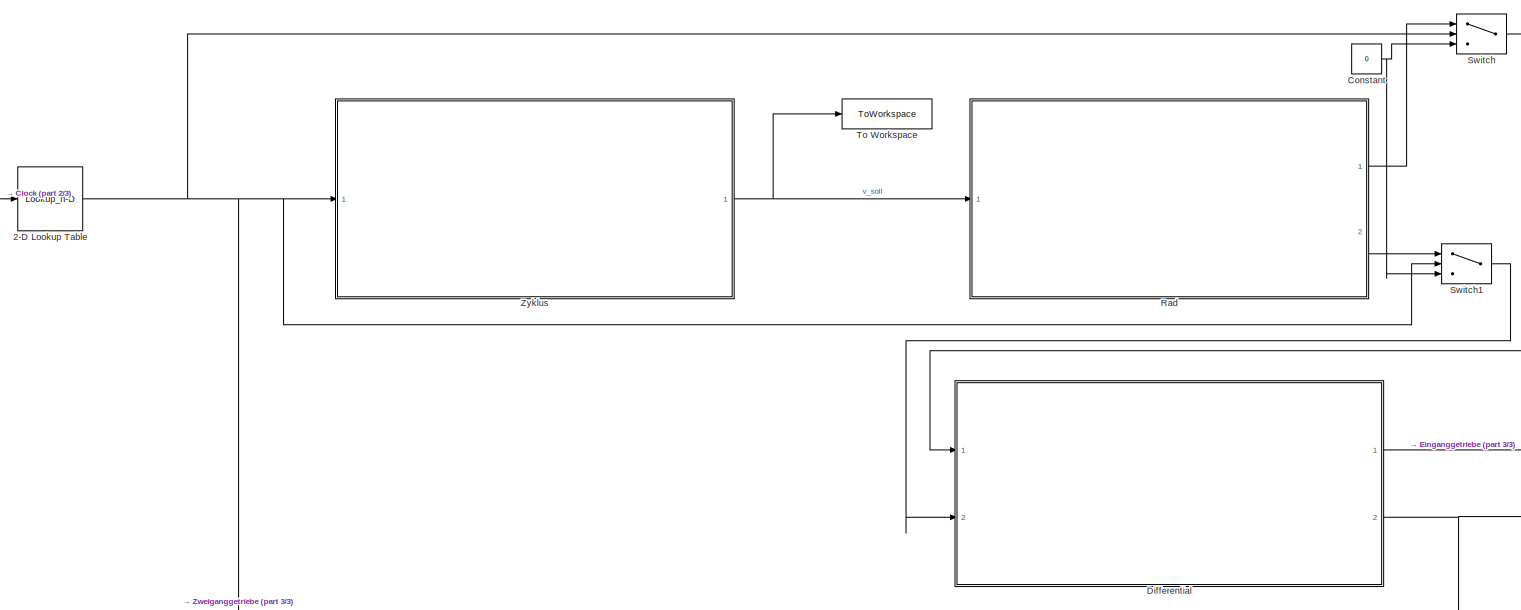
[diagram: root canvas - part 1/3, top left region]
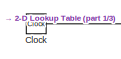
[diagram: root canvas - part 2/3, top left region]
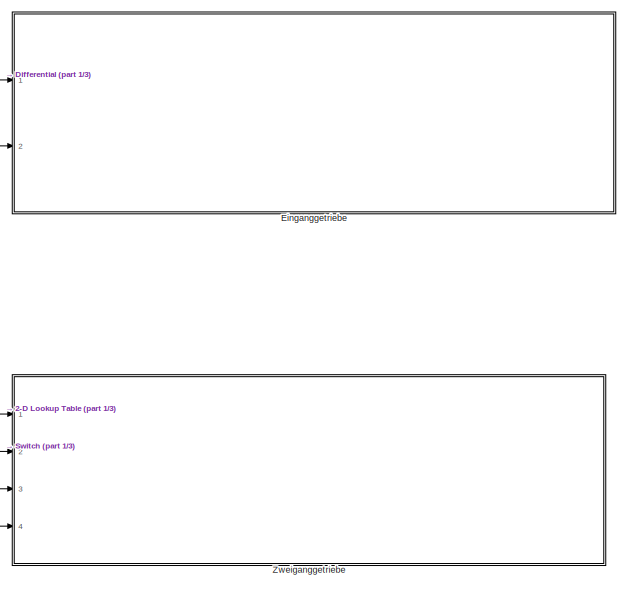
[diagram: root canvas - part 3/3, bottom right region]
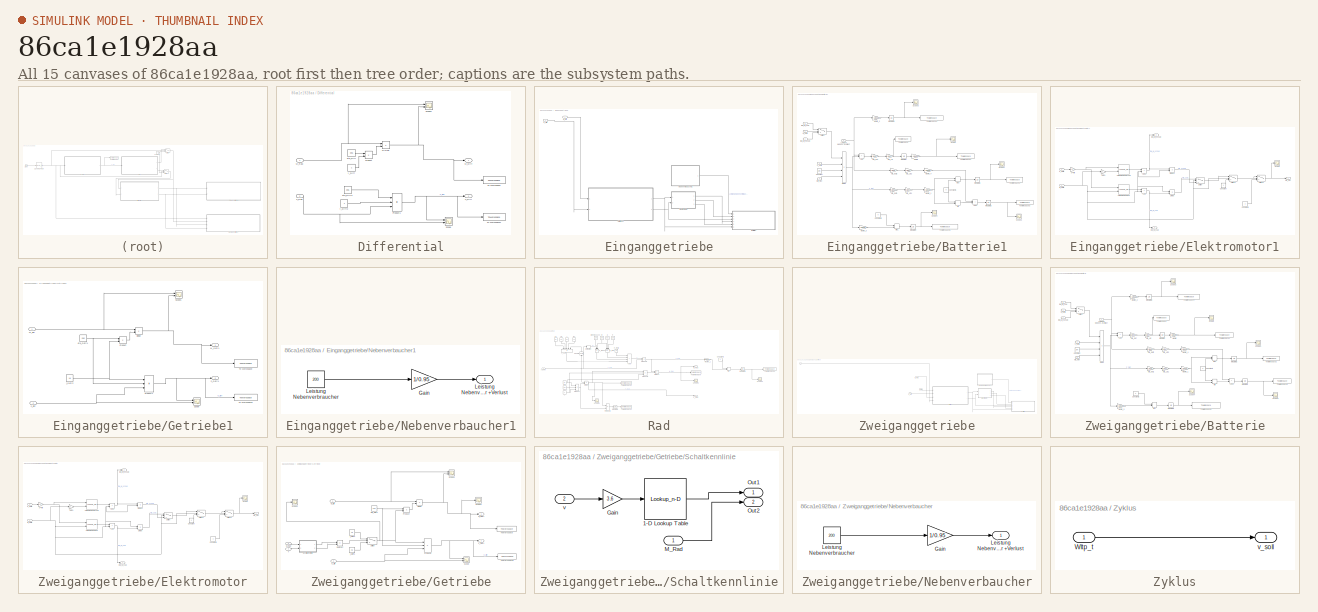
[diagram: thumbnail index - all 15 canvases of the model, root first then tree order]
MODEL slx_86ca1e1928aa
KIND model
CONFIG AbsTol = auto
CONFIG EnableMultiTasking = off
CONFIG FixedStep = 1
CONFIG MaxStep = auto
CONFIG MinStep = auto
CONFIG RelTol = 1e-3
CONFIG SampleTimeConstraint = Unconstrained
CONFIG SolverName = FixedStepAuto
CONFIG StartTime = 0.0
CONFIG StopTime = 1800
BLOCK [Lookup_n-D] 2-D Lookup Table
  BreakpointsForDimension1 = Wltp_t
  BreakpointsForDimension2 = [1:3]
  InputPortMap = u0
  InternalRulePriority = Speed
  NumberOfTableDimensions = 1
  Ports = [1, 1]
  RndMeth = Simplest
  Table = Wltp_v
BLOCK [Clock] Clock
  Decimation = 1
BLOCK [Constant] Constant
  Value = 0
BLOCK [SubSystem] Differential
  Ports = [2, 2]
  RequestExecContextInheritance = off
BLOCK [Product] Differential/Divide
  Inputs = */
  Ports = [2, 1]
BLOCK [Outport] Differential/M_Diff
BLOCK [Inport] Differential/M_Rad
BLOCK [Product] Differential/Product
  Ports = [2, 1]
BLOCK [Product] Differential/Product1
  Inputs = 3
  Ports = [3, 1]
BLOCK [Scope] Differential/Scope
  Floating = off
  NumInputPorts = 2
  Ports = [2]
  ScopeSpecificationString = Simulink.scopes.TimeScopeBlockCfg('CurrentConfiguration', extmgr.ConfigurationSet(extmgr.Configuration('Core','General UI',true),extmgr.Configuration('Core','Source UI',true),extmgr.Configuration('Sources','WiredSimulink',true,'DataLoggingVariableName','ScopeData1'),extmgr.Configuration('Visuals','Time Domain',true,'SerializedDisplays',{struct('MinYLimReal','-8.10956','MaxYLimReal','72.986','YLabe...<+1394ch>
BLOCK [Scope] Differential/Scope1
  Floating = off
  NumInputPorts = 2
  Ports = [2]
  ScopeSpecificationString = Simulink.scopes.TimeScopeBlockCfg('CurrentConfiguration', extmgr.ConfigurationSet(extmgr.Configuration('Core','General UI',true),extmgr.Configuration('Core','Source UI',true),extmgr.Configuration('Sources','WiredSimulink',true,'DataLoggingVariableName','ScopeData2'),extmgr.Configuration('Visuals','Time Domain',true,'SerializedDisplays',{struct('MinYLimReal','-868.40016','MaxYLimReal','1089.79286',...<+1433ch>
BLOCK [ToWorkspace] Differential/To Workspace
  FixptAsFi = on
  MaxDataPoints = inf
  Ports = [1]
  SampleTime = -1
  SaveFormat = Timeseries
  VariableName = M_Diff
BLOCK [ToWorkspace] Differential/To Workspace1
  FixptAsFi = on
  MaxDataPoints = inf
  Ports = [1]
  SampleTime = -1
  SaveFormat = Timeseries
  VariableName = n_Diff
BLOCK [Constant] Differential/eta_Diff
  Value = 0.95
BLOCK [Constant] Differential/eta_Diff2
  Value = 0.95
BLOCK [Constant] Differential/i_Diff
  Value = 4
BLOCK [Constant] Differential/i_Diff2
  Value = 4
BLOCK [Outport] Differential/n_Diff
  Port = 2
BLOCK [Inport] Differential/n_Rad
  Port = 2
BLOCK [SubSystem] Einganggetriebe
  Ports = [2]
  RequestExecContextInheritance = off
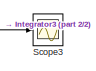
[diagram: Einganggetriebe/Batterie1 - part 1/2, top center region]
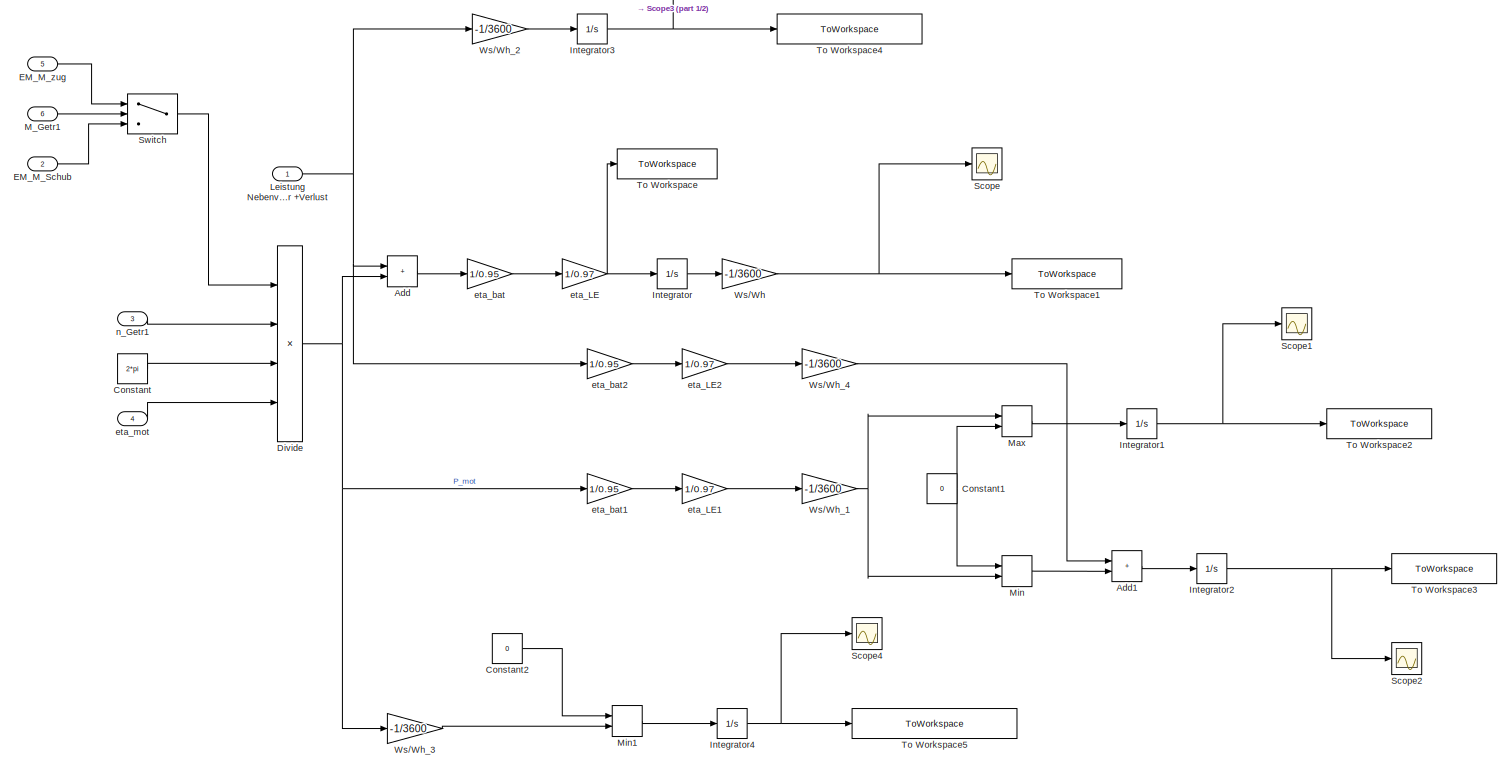
[diagram: Einganggetriebe/Batterie1 - part 2/2, most of the canvas]
BLOCK [SubSystem] Einganggetriebe/Batterie1
  Ports = [6]
  RequestExecContextInheritance = off
BLOCK [Sum] Einganggetriebe/Batterie1/Add
  IconShape = rectangular
  Ports = [2, 1]
BLOCK [Sum] Einganggetriebe/Batterie1/Add1
  IconShape = rectangular
  Ports = [2, 1]
BLOCK [Constant] Einganggetriebe/Batterie1/Constant
  Value = 2*pi
BLOCK [Constant] Einganggetriebe/Batterie1/Constant1
  Value = 0
BLOCK [Constant] Einganggetriebe/Batterie1/Constant2
  Value = 0
BLOCK [Product] Einganggetriebe/Batterie1/Divide
  Inputs = ***/
  Ports = [4, 1]
BLOCK [Inport] Einganggetriebe/Batterie1/EM_M_Schub
  Port = 2
BLOCK [Inport] Einganggetriebe/Batterie1/EM_M_zug
  Port = 5
BLOCK [Integrator] Einganggetriebe/Batterie1/Integrator
  Ports = [1, 1]
BLOCK [Integrator] Einganggetriebe/Batterie1/Integrator1
  Ports = [1, 1]
BLOCK [Integrator] Einganggetriebe/Batterie1/Integrator2
  Ports = [1, 1]
BLOCK [Integrator] Einganggetriebe/Batterie1/Integrator3
  Ports = [1, 1]
BLOCK [Integrator] Einganggetriebe/Batterie1/Integrator4
  Ports = [1, 1]
BLOCK [Inport] Einganggetriebe/Batterie1/Leistung Nebenverbaucher +Verlust
BLOCK [Inport] Einganggetriebe/Batterie1/M_Getr1
  Port = 6
BLOCK [MinMax] Einganggetriebe/Batterie1/Max
  Function = max
  Inputs = 2
  Ports = [2, 1]
BLOCK [MinMax] Einganggetriebe/Batterie1/Min
  Inputs = 2
  Ports = [2, 1]
BLOCK [MinMax] Einganggetriebe/Batterie1/Min1
  Inputs = 2
  Ports = [2, 1]
BLOCK [Scope] Einganggetriebe/Batterie1/Scope
  Floating = off
  NumInputPorts = 1
  Ports = [1]
  ScopeSpecificationString = Simulink.scopes.TimeScopeBlockCfg('CurrentConfiguration', extmgr.ConfigurationSet(extmgr.Configuration('Core','General UI',true),extmgr.Configuration('Core','Source UI',true),extmgr.Configuration('Sources','WiredSimulink',true,'DataLoggingVariableName','ScopeData1'),extmgr.Configuration('Visuals','Time Domain',true,'SerializedDisplays',{struct('MinYLimReal','-2300.46075','MaxYLimReal','255.60675',...<+1437ch>
BLOCK [Scope] Einganggetriebe/Batterie1/Scope1
  Floating = off
  NumInputPorts = 1
  Ports = [1]
  ScopeSpecificationString = Simulink.scopes.TimeScopeBlockCfg('CurrentConfiguration', extmgr.ConfigurationSet(extmgr.Configuration('Core','General UI',true),extmgr.Configuration('Core','Source UI',true),extmgr.Configuration('Sources','WiredSimulink',true,'DataLoggingVariableName','ScopeData1'),extmgr.Configuration('Visuals','Time Domain',true,'SerializedDisplays',{struct('MinYLimReal','-104.026','MaxYLimReal','936.234','YLab...<+1421ch>  <repeated x6 — deduplicated; at blocks: Scope1, Scope2, Scope3>
BLOCK [Scope] Einganggetriebe/Batterie1/Scope2
  Floating = off
  NumInputPorts = 1
  Ports = [1]
BLOCK [Scope] Einganggetriebe/Batterie1/Scope3
  Floating = off
  NumInputPorts = 1
  Ports = [1]
BLOCK [Scope] Einganggetriebe/Batterie1/Scope4
  Floating = off
  NumInputPorts = 1
  Ports = [1]
  ScopeSpecificationString = Simulink.scopes.TimeScopeBlockCfg('CurrentConfiguration', extmgr.ConfigurationSet(extmgr.Configuration('Core','General UI',true),extmgr.Configuration('Core','Source UI',true),extmgr.Configuration('Sources','WiredSimulink',true,'DataLoggingVariableName','ScopeData2'),extmgr.Configuration('Visuals','Time Domain',true,'SerializedDisplays',{struct('MinYLimReal','-104.026','MaxYLimReal','936.234','YLab...<+1421ch>
BLOCK [Switch] Einganggetriebe/Batterie1/Switch
  Criteria = u2 > Threshold
  InputSameDT = off
  SaturateOnIntegerOverflow = off
BLOCK [ToWorkspace] Einganggetriebe/Batterie1/To Workspace
  FixptAsFi = on
  MaxDataPoints = inf
  Ports = [1]
  SampleTime = -1
  SaveFormat = Timeseries
  VariableName = Leistung_EG
BLOCK [ToWorkspace] Einganggetriebe/Batterie1/To Workspace1
  FixptAsFi = on
  MaxDataPoints = inf
  Ports = [1]
  SampleTime = -1
  SaveFormat = Timeseries
  VariableName = Ladestand_EG
BLOCK [ToWorkspace] Einganggetriebe/Batterie1/To Workspace2
  FixptAsFi = on
  MaxDataPoints = inf
  Ports = [1]
  SampleTime = -1
  SaveFormat = Timeseries
  VariableName = Energie_Reku_EG
BLOCK [ToWorkspace] Einganggetriebe/Batterie1/To Workspace3
  FixptAsFi = on
  MaxDataPoints = inf
  Ports = [1]
  SampleTime = -1
  SaveFormat = Timeseries
  VariableName = Energie_o_Reku_EG
BLOCK [ToWorkspace] Einganggetriebe/Batterie1/To Workspace4
  FixptAsFi = on
  MaxDataPoints = inf
  Ports = [1]
  SampleTime = -1
  SaveFormat = Timeseries
  VariableName = Energie_Nebenverbraucher_EG
BLOCK [ToWorkspace] Einganggetriebe/Batterie1/To Workspace5
  FixptAsFi = on
  MaxDataPoints = inf
  Ports = [1]
  SampleTime = -1
  SaveFormat = Timeseries
  VariableName = Energie_Antriebsstrang_m_Rad_EG
BLOCK [Gain] Einganggetriebe/Batterie1/Ws//Wh
  Gain = -1/3600
BLOCK [Gain] Einganggetriebe/Batterie1/Ws//Wh_1
  Gain = -1/3600
BLOCK [Gain] Einganggetriebe/Batterie1/Ws//Wh_2
  Gain = -1/3600
BLOCK [Gain] Einganggetriebe/Batterie1/Ws//Wh_3
  Gain = -1/3600
BLOCK [Gain] Einganggetriebe/Batterie1/Ws//Wh_4
  Gain = -1/3600
BLOCK [Gain] Einganggetriebe/Batterie1/eta_LE
  Gain = 1/0.97
BLOCK [Gain] Einganggetriebe/Batterie1/eta_LE1
  Gain = 1/0.97
BLOCK [Gain] Einganggetriebe/Batterie1/eta_LE2
  Gain = 1/0.97
BLOCK [Gain] Einganggetriebe/Batterie1/eta_bat
  Gain = 1/0.95
BLOCK [Gain] Einganggetriebe/Batterie1/eta_bat1
  Gain = 1/0.95
BLOCK [Gain] Einganggetriebe/Batterie1/eta_bat2
  Gain = 1/0.95
BLOCK [Inport] Einganggetriebe/Batterie1/eta_mot
  Port = 4
BLOCK [Inport] Einganggetriebe/Batterie1/n_Getr1
  Port = 3
BLOCK [SubSystem] Einganggetriebe/Elektromotor1
  Ports = [2, 3]
  RequestExecContextInheritance = off
BLOCK [Sum] Einganggetriebe/Elektromotor1/Add
  IconShape = rectangular
  Ports = [2, 1]
BLOCK [Sum] Einganggetriebe/Elektromotor1/Add1
  IconShape = rectangular
  Ports = [2, 1]
BLOCK [Constant] Einganggetriebe/Elektromotor1/Constant
BLOCK [Constant] Einganggetriebe/Elektromotor1/Constant1
BLOCK [Product] Einganggetriebe/Elektromotor1/Divide
  Inputs = */
  Ports = [2, 1]
BLOCK [Product] Einganggetriebe/Elektromotor1/Divide1
  Inputs = */
  Ports = [2, 1]
BLOCK [Outport] Einganggetriebe/Elektromotor1/EM_M_schub
  Port = 2
BLOCK [Outport] Einganggetriebe/Elektromotor1/EM_M_zug
  Port = 3
BLOCK [Gain] Einganggetriebe/Elektromotor1/Gain1
  Gain = -1
BLOCK [Inport] Einganggetriebe/Elektromotor1/M_Getr1
BLOCK [Scope] Einganggetriebe/Elektromotor1/Scope
  Floating = off
  NumInputPorts = 1
  Ports = [1]
  ScopeSpecificationString = Simulink.scopes.TimeScopeBlockCfg('CurrentConfiguration', extmgr.ConfigurationSet(extmgr.Configuration('Core','General UI',true),extmgr.Configuration('Core','Source UI',true),extmgr.Configuration('Sources','WiredSimulink',true,'DataLoggingVariableName','ScopeData1'),extmgr.Configuration('Visuals','Time Domain',true,'SerializedDisplays',{struct('MinYLimReal','-0.12315','MaxYLimReal','1.12479','YLab...<+1386ch>
BLOCK [Switch] Einganggetriebe/Elektromotor1/Switch
  Criteria = u2 > Threshold
  InputSameDT = off
  SaturateOnIntegerOverflow = off
BLOCK [Switch] Einganggetriebe/Elektromotor1/Switch1
  Criteria = u2 ~= 0
  InputSameDT = off
  SaturateOnIntegerOverflow = off
BLOCK [Switch] Einganggetriebe/Elektromotor1/Switch2
  InputSameDT = off
  SaturateOnIntegerOverflow = off
BLOCK [Lookup_n-D] Einganggetriebe/Elektromotor1/Verlustmoment Schub
  BreakpointsForDimension1 = n_achse
  BreakpointsForDimension2 = M_achse
  InputPortMap = u0,u1
  InternalRulePriority = Speed
  Ports = [2, 1]
  RndMeth = Simplest
  Table = em.M_loss_gen_grid
BLOCK [Lookup_n-D] Einganggetriebe/Elektromotor1/Verlustmoment Zug 
  BreakpointsForDimension1 = n_achse
  BreakpointsForDimension2 = M_achse
  InputPortMap = u0,u1
  InternalRulePriority = Speed
  Ports = [2, 1]
  RndMeth = Simplest
  Table = em.M_loss_mot_grid
BLOCK [Outport] Einganggetriebe/Elektromotor1/eta_mot
BLOCK [Inport] Einganggetriebe/Elektromotor1/n_Getr1
  Port = 2
BLOCK [Gain] Einganggetriebe/Elektromotor1/s -> min
  Gain = 60
BLOCK [SubSystem] Einganggetriebe/Getriebe1
  Ports = [2, 2]
  RequestExecContextInheritance = off
BLOCK [Product] Einganggetriebe/Getriebe1/Divide
  Inputs = */
  Ports = [2, 1]
BLOCK [Inport] Einganggetriebe/Getriebe1/M_Diff
BLOCK [Outport] Einganggetriebe/Getriebe1/M_Getr1
BLOCK [Product] Einganggetriebe/Getriebe1/Product
  Ports = [2, 1]
BLOCK [Product] Einganggetriebe/Getriebe1/Product1
  Inputs = 3
  Ports = [3, 1]
BLOCK [Scope] Einganggetriebe/Getriebe1/Scope
  Floating = off
  NumInputPorts = 2
  Ports = [2]
  ScopeSpecificationString = Simulink.scopes.TimeScopeBlockCfg('CurrentConfiguration', extmgr.ConfigurationSet(extmgr.Configuration('Core','General UI',true),extmgr.Configuration('Core','Source UI',true),extmgr.Configuration('Sources','WiredSimulink',true,'DataLoggingVariableName','ScopeData1'),extmgr.Configuration('Visuals','Time Domain',true,'SerializedDisplays',{struct('MinYLimReal','-13.86734','MaxYLimReal','124.80606','Y...<+1416ch>
BLOCK [Scope] Einganggetriebe/Getriebe1/Scope1
  Floating = off
  NumInputPorts = 2
  Ports = [2]
  ScopeSpecificationString = Simulink.scopes.TimeScopeBlockCfg('CurrentConfiguration', extmgr.ConfigurationSet(extmgr.Configuration('Core','General UI',true),extmgr.Configuration('Core','Source UI',true),extmgr.Configuration('Sources','WiredSimulink',true,'DataLoggingVariableName','ScopeData2'),extmgr.Configuration('Visuals','Time Domain',true,'SerializedDisplays',{struct('MinYLimReal','-227.77882','MaxYLimReal','288.34382','...<+1413ch>
BLOCK [ToWorkspace] Einganggetriebe/Getriebe1/To Workspace
  FixptAsFi = on
  MaxDataPoints = inf
  Ports = [1]
  SampleTime = -1
  SaveFormat = Timeseries
  VariableName = M_Getr1_EG
BLOCK [ToWorkspace] Einganggetriebe/Getriebe1/To Workspace1
  FixptAsFi = on
  MaxDataPoints = inf
  Ports = [1]
  SampleTime = -1
  SaveFormat = Timeseries
  VariableName = n_Getr1_EG
BLOCK [Constant] Einganggetriebe/Getriebe1/eta_Getr1
  Value = 0.95
BLOCK [Constant] Einganggetriebe/Getriebe1/i_Getr2
  Value = 1.8
BLOCK [Inport] Einganggetriebe/Getriebe1/n_Diff
  Port = 2
BLOCK [Outport] Einganggetriebe/Getriebe1/n_Getr1
  Port = 2
BLOCK [Inport] Einganggetriebe/M_Diff
BLOCK [SubSystem] Einganggetriebe/Nebenverbaucher1
  Ports = [0, 1]
  RequestExecContextInheritance = off
BLOCK [Gain] Einganggetriebe/Nebenverbaucher1/Gain
  Gain = 1/0.95
BLOCK [Outport] Einganggetriebe/Nebenverbaucher1/Leistung Nebenverbaucher +Verlust
BLOCK [Constant] Einganggetriebe/Nebenverbaucher1/Leistung Nebenverbraucher
  Value = 200
BLOCK [Inport] Einganggetriebe/n_Diff
  Port = 2
BLOCK [SubSystem] Rad
  Ports = [1, 2]
  RequestExecContextInheritance = off
BLOCK [Constant] Rad/0.5
  NameLocation = left
  Value = 0.5
BLOCK [Constant] Rad/2
  Value = 2
BLOCK [Constant] Rad/A
  NameLocation = left
  Value = 2.2
BLOCK [Sum] Rad/Add
  IconShape = rectangular
  Inputs = ++++
  Ports = [4, 1]
BLOCK [Constant] Rad/Constant1
  Value = 0
BLOCK [Derivative] Rad/Derivative
BLOCK [Product] Rad/Divide
  Inputs = */
  Ports = [2, 1]
BLOCK [Product] Rad/Divide1
  Inputs = */
  Ports = [2, 1]
BLOCK [Constant] Rad/Drehmzuschl.
  NameLocation = left
  Value = 1.05
BLOCK [Product] Rad/F_Beschl
  Inputs = 3
  NameLocation = left
  Ports = [3, 1]
BLOCK [Product] Rad/F_Luft
  Inputs = 5
  NameLocation = left
  Ports = [5, 1]
BLOCK [Constant] Rad/F_Reib
  NameLocation = left
  Value = 40
BLOCK [Product] Rad/F_Roll
  Inputs = 3
  NameLocation = left
  Ports = [3, 1]
BLOCK [Integrator] Rad/Integrator1
  Ports = [1, 1]
BLOCK [Integrator] Rad/Integrator3
  Ports = [1, 1]
BLOCK [Outport] Rad/M_Rad
BLOCK [MinMax] Rad/Min
  Inputs = 2
  Ports = [2, 1]
BLOCK [Constant] Rad/Pi
  Value = pi
BLOCK [Product] Rad/Product
  Inputs = 3
  Ports = [3, 1]
BLOCK [Product] Rad/Product1
  Ports = [2, 1]
BLOCK [Product] Rad/Product2
  Inputs = 3
  Ports = [3, 1]
BLOCK [Product] Rad/Product3
  Ports = [2, 1]
BLOCK [Scope] Rad/Scope1
  Floating = off
  NumInputPorts = 1
  Ports = [1]
  ScopeSpecificationString = Simulink.scopes.TimeScopeBlockCfg('CurrentConfiguration', extmgr.ConfigurationSet(extmgr.Configuration('Core','General UI',true),extmgr.Configuration('Core','Source UI',true),extmgr.Configuration('Sources','WiredSimulink',true,'DataLoggingVariableName','ScopeData2'),extmgr.Configuration('Visuals','Time Domain',true,'SerializedDisplays',{struct('MinYLimReal','-2.13409','MaxYLimReal','19.20684','YLa...<+1450ch>
BLOCK [Scope] Rad/Scope2
  Floating = off
  NumInputPorts = 1
  Ports = [1]
  ScopeSpecificationString = Simulink.scopes.TimeScopeBlockCfg('CurrentConfiguration', extmgr.ConfigurationSet(extmgr.Configuration('Core','General UI',true),extmgr.Configuration('Core','Source UI',true),extmgr.Configuration('Sources','WiredSimulink',true,'DataLoggingVariableName','ScopeData4'),extmgr.Configuration('Visuals','Time Domain',true,'SerializedDisplays',{struct('MinYLimReal','-104.026','MaxYLimReal','936.234','YLab...<+1421ch>
BLOCK [Scope] Rad/Scope3
  Floating = off
  NumInputPorts = 1
  Ports = [1]
  ScopeSpecificationString = Simulink.scopes.TimeScopeBlockCfg('CurrentConfiguration', extmgr.ConfigurationSet(extmgr.Configuration('Core','General UI',true),extmgr.Configuration('Core','Source UI',true),extmgr.Configuration('Sources','WiredSimulink',true,'DataLoggingVariableName','ScopeData3'),extmgr.Configuration('Visuals','Time Domain',true,'SerializedDisplays',{struct('MinYLimReal','-3479.48452','MaxYLimReal','386.60939',...<+1439ch>
BLOCK [Math] Rad/Square
  NameLocation = right
  Operator = square
  Ports = [1, 1]
BLOCK [ToWorkspace] Rad/To Workspace
  FixptAsFi = on
  MaxDataPoints = inf
  Ports = [1]
  SampleTime = -1
  SaveFormat = Timeseries
  VariableName = M_Rad
BLOCK [ToWorkspace] Rad/To Workspace1
  FixptAsFi = on
  MaxDataPoints = inf
  Ports = [1]
  SampleTime = -1
  Save2DSignal = 2-D array (concatenate along first dimension)
  VariableName = n_rad
BLOCK [ToWorkspace] Rad/To Workspace2
  FixptAsFi = on
  MaxDataPoints = inf
  Ports = [1]
  SampleTime = -1
  Save2DSignal = 2-D array (concatenate along first dimension)
  VariableName = Strecke_WLTP
BLOCK [ToWorkspace] Rad/To Workspace4
  FixptAsFi = on
  MaxDataPoints = inf
  Ports = [1]
  SampleTime = -1
  SaveFormat = Timeseries
  VariableName = Energie_o_Reku_Rad
BLOCK [Gain] Rad/Ws//Wh_1
  Gain = -1/3600
BLOCK [Constant] Rad/cw
  NameLocation = left
  Value = 0.3
BLOCK [Constant] Rad/fr
  NameLocation = left
  Value = 0.008
BLOCK [Constant] Rad/g
  NameLocation = left
  Value = 9.81
BLOCK [Constant] Rad/m
  NameLocation = left
  Value = 1350
BLOCK [Outport] Rad/n_Rad
  Port = 2
BLOCK [Constant] Rad/r_dyn
  Value = 0.34
BLOCK [Constant] Rad/rho
  NameLocation = left
  Value = 1.2
BLOCK [Inport] Rad/v_soll
BLOCK [Switch] Switch
  Criteria = u2 ~= 0
  InputSameDT = off
  SaturateOnIntegerOverflow = off
BLOCK [Switch] Switch1
  Criteria = u2 > Threshold
  InputSameDT = off
  SaturateOnIntegerOverflow = off
BLOCK [ToWorkspace] To Workspace
  FixptAsFi = on
  MaxDataPoints = inf
  Ports = [1]
  SampleTime = -1
  SaveFormat = Timeseries
  VariableName = v_soll
BLOCK [SubSystem] Zweiganggetriebe
  Ports = [4]
  RequestExecContextInheritance = off
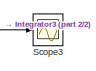
[diagram: Zweiganggetriebe/Batterie - part 1/2, top center region]
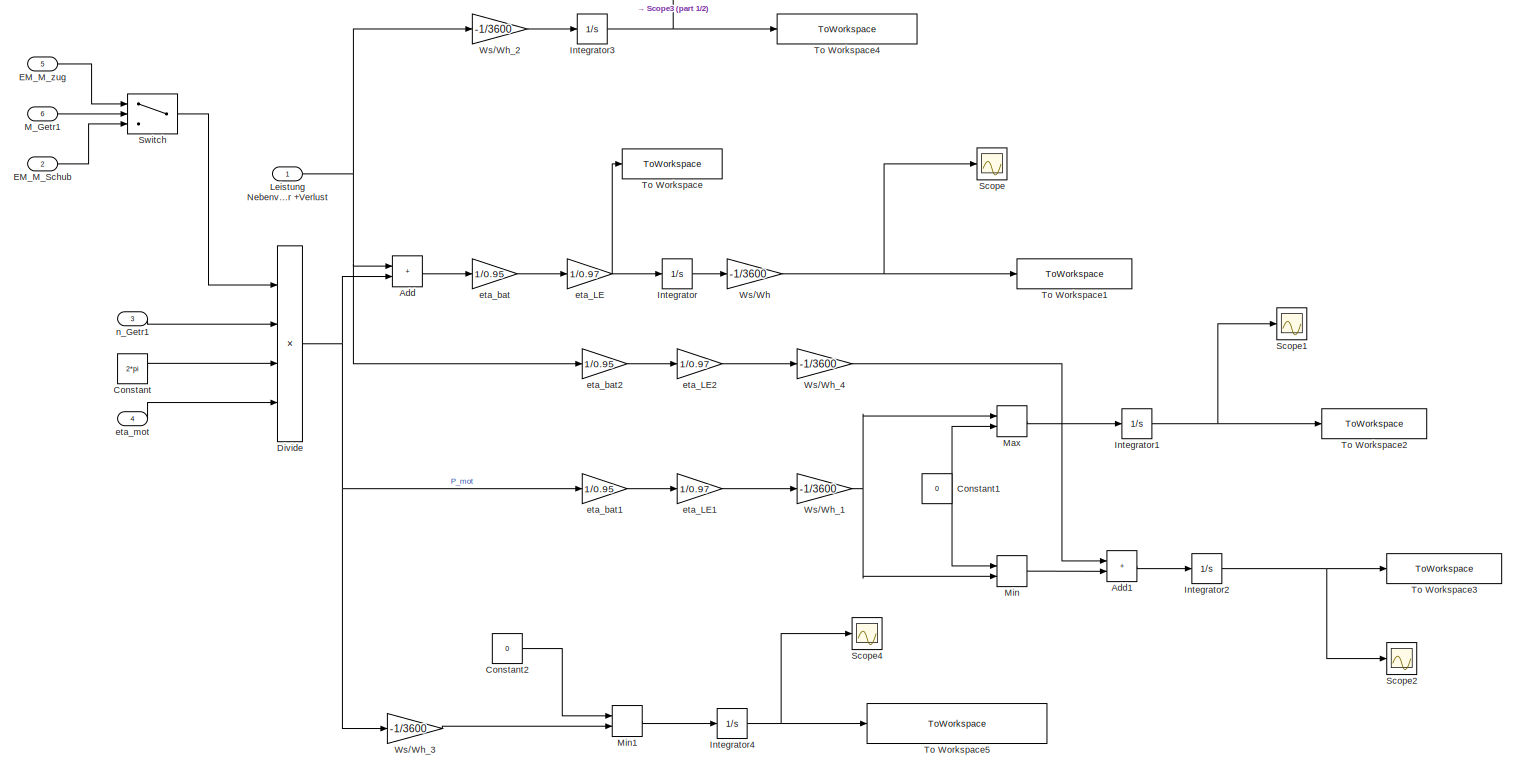
[diagram: Zweiganggetriebe/Batterie - part 2/2, most of the canvas]
BLOCK [SubSystem] Zweiganggetriebe/Batterie
  Ports = [6]
  RequestExecContextInheritance = off
BLOCK [Sum] Zweiganggetriebe/Batterie/Add
  IconShape = rectangular
  Ports = [2, 1]
BLOCK [Sum] Zweiganggetriebe/Batterie/Add1
  IconShape = rectangular
  Ports = [2, 1]
BLOCK [Constant] Zweiganggetriebe/Batterie/Constant
  Value = 2*pi
BLOCK [Constant] Zweiganggetriebe/Batterie/Constant1
  Value = 0
BLOCK [Constant] Zweiganggetriebe/Batterie/Constant2
  Value = 0
BLOCK [Product] Zweiganggetriebe/Batterie/Divide
  Inputs = ***/
  Ports = [4, 1]
BLOCK [Inport] Zweiganggetriebe/Batterie/EM_M_Schub
  Port = 2
BLOCK [Inport] Zweiganggetriebe/Batterie/EM_M_zug
  Port = 5
BLOCK [Integrator] Zweiganggetriebe/Batterie/Integrator
  Ports = [1, 1]
BLOCK [Integrator] Zweiganggetriebe/Batterie/Integrator1
  Ports = [1, 1]
BLOCK [Integrator] Zweiganggetriebe/Batterie/Integrator2
  Ports = [1, 1]
BLOCK [Integrator] Zweiganggetriebe/Batterie/Integrator3
  Ports = [1, 1]
BLOCK [Integrator] Zweiganggetriebe/Batterie/Integrator4
  Ports = [1, 1]
BLOCK [Inport] Zweiganggetriebe/Batterie/Leistung Nebenverbaucher +Verlust
BLOCK [Inport] Zweiganggetriebe/Batterie/M_Getr1
  Port = 6
BLOCK [MinMax] Zweiganggetriebe/Batterie/Max
  Function = max
  Inputs = 2
  Ports = [2, 1]
BLOCK [MinMax] Zweiganggetriebe/Batterie/Min
  Inputs = 2
  Ports = [2, 1]
BLOCK [MinMax] Zweiganggetriebe/Batterie/Min1
  Inputs = 2
  Ports = [2, 1]
BLOCK [Scope] Zweiganggetriebe/Batterie/Scope
  Floating = off
  NumInputPorts = 1
  Ports = [1]
  ScopeSpecificationString = Simulink.scopes.TimeScopeBlockCfg('CurrentConfiguration', extmgr.ConfigurationSet(extmgr.Configuration('Core','General UI',true),extmgr.Configuration('Core','Source UI',true),extmgr.Configuration('Sources','WiredSimulink',true,'DataLoggingVariableName','ScopeData1'),extmgr.Configuration('Visuals','Time Domain',true,'SerializedDisplays',{struct('MinYLimReal','-2300.46075','MaxYLimReal','255.60675',...<+1437ch>
BLOCK [Scope] Zweiganggetriebe/Batterie/Scope1
  Floating = off
  NumInputPorts = 1
  Ports = [1]
BLOCK [Scope] Zweiganggetriebe/Batterie/Scope2
  Floating = off
  NumInputPorts = 1
  Ports = [1]
BLOCK [Scope] Zweiganggetriebe/Batterie/Scope3
  Floating = off
  NumInputPorts = 1
  Ports = [1]
BLOCK [Scope] Zweiganggetriebe/Batterie/Scope4
  Floating = off
  NumInputPorts = 1
  Ports = [1]
  ScopeSpecificationString = Simulink.scopes.TimeScopeBlockCfg('CurrentConfiguration', extmgr.ConfigurationSet(extmgr.Configuration('Core','General UI',true),extmgr.Configuration('Core','Source UI',true),extmgr.Configuration('Sources','WiredSimulink',true,'DataLoggingVariableName','ScopeData2'),extmgr.Configuration('Visuals','Time Domain',true,'SerializedDisplays',{struct('MinYLimReal','-104.026','MaxYLimReal','936.234','YLab...<+1421ch>
BLOCK [Switch] Zweiganggetriebe/Batterie/Switch
  Criteria = u2 > Threshold
  InputSameDT = off
  SaturateOnIntegerOverflow = off
BLOCK [ToWorkspace] Zweiganggetriebe/Batterie/To Workspace
  FixptAsFi = on
  MaxDataPoints = inf
  Ports = [1]
  SampleTime = -1
  SaveFormat = Timeseries
  VariableName = Leistung_ZG
BLOCK [ToWorkspace] Zweiganggetriebe/Batterie/To Workspace1
  FixptAsFi = on
  MaxDataPoints = inf
  Ports = [1]
  SampleTime = -1
  SaveFormat = Timeseries
  VariableName = Ladestand_ZG
BLOCK [ToWorkspace] Zweiganggetriebe/Batterie/To Workspace2
  FixptAsFi = on
  MaxDataPoints = inf
  Ports = [1]
  SampleTime = -1
  SaveFormat = Timeseries
  VariableName = Energie_Reku_ZG
BLOCK [ToWorkspace] Zweiganggetriebe/Batterie/To Workspace3
  FixptAsFi = on
  MaxDataPoints = inf
  Ports = [1]
  SampleTime = -1
  SaveFormat = Timeseries
  VariableName = Energie_o_Reku_ZG
BLOCK [ToWorkspace] Zweiganggetriebe/Batterie/To Workspace4
  FixptAsFi = on
  MaxDataPoints = inf
  Ports = [1]
  SampleTime = -1
  SaveFormat = Timeseries
  VariableName = Energie_Nebenverbraucher_ZG
BLOCK [ToWorkspace] Zweiganggetriebe/Batterie/To Workspace5
  FixptAsFi = on
  MaxDataPoints = inf
  Ports = [1]
  SampleTime = -1
  SaveFormat = Timeseries
  VariableName = Energie_Antriebsstrang_m_Rad_ZG
BLOCK [Gain] Zweiganggetriebe/Batterie/Ws//Wh
  Gain = -1/3600
BLOCK [Gain] Zweiganggetriebe/Batterie/Ws//Wh_1
  Gain = -1/3600
BLOCK [Gain] Zweiganggetriebe/Batterie/Ws//Wh_2
  Gain = -1/3600
BLOCK [Gain] Zweiganggetriebe/Batterie/Ws//Wh_3
  Gain = -1/3600
BLOCK [Gain] Zweiganggetriebe/Batterie/Ws//Wh_4
  Gain = -1/3600
BLOCK [Gain] Zweiganggetriebe/Batterie/eta_LE
  Gain = 1/0.97
BLOCK [Gain] Zweiganggetriebe/Batterie/eta_LE1
  Gain = 1/0.97
BLOCK [Gain] Zweiganggetriebe/Batterie/eta_LE2
  Gain = 1/0.97
BLOCK [Gain] Zweiganggetriebe/Batterie/eta_bat
  Gain = 1/0.95
BLOCK [Gain] Zweiganggetriebe/Batterie/eta_bat1
  Gain = 1/0.95
BLOCK [Gain] Zweiganggetriebe/Batterie/eta_bat2
  Gain = 1/0.95
BLOCK [Inport] Zweiganggetriebe/Batterie/eta_mot
  Port = 4
BLOCK [Inport] Zweiganggetriebe/Batterie/n_Getr1
  Port = 3
BLOCK [SubSystem] Zweiganggetriebe/Elektromotor
  Ports = [2, 3]
  RequestExecContextInheritance = off
BLOCK [Sum] Zweiganggetriebe/Elektromotor/Add
  IconShape = rectangular
  Ports = [2, 1]
BLOCK [Sum] Zweiganggetriebe/Elektromotor/Add1
  IconShape = rectangular
  Ports = [2, 1]
BLOCK [Constant] Zweiganggetriebe/Elektromotor/Constant
BLOCK [Constant] Zweiganggetriebe/Elektromotor/Constant1
BLOCK [Product] Zweiganggetriebe/Elektromotor/Divide
  Inputs = */
  Ports = [2, 1]
BLOCK [Product] Zweiganggetriebe/Elektromotor/Divide1
  Inputs = */
  Ports = [2, 1]
BLOCK [Outport] Zweiganggetriebe/Elektromotor/EM_M_schub
  Port = 2
BLOCK [Outport] Zweiganggetriebe/Elektromotor/EM_M_zug
  Port = 3
BLOCK [Gain] Zweiganggetriebe/Elektromotor/Gain1
  Gain = -1
BLOCK [Inport] Zweiganggetriebe/Elektromotor/M_Getr1
BLOCK [Scope] Zweiganggetriebe/Elektromotor/Scope
  Floating = off
  NumInputPorts = 1
  Ports = [1]
  ScopeSpecificationString = Simulink.scopes.TimeScopeBlockCfg('CurrentConfiguration', extmgr.ConfigurationSet(extmgr.Configuration('Core','General UI',true),extmgr.Configuration('Core','Source UI',true),extmgr.Configuration('Sources','WiredSimulink',true,'DataLoggingVariableName','ScopeData1'),extmgr.Configuration('Visuals','Time Domain',true,'SerializedDisplays',{struct('MinYLimReal','-0.12315','MaxYLimReal','1.12479','YLab...<+1386ch>
BLOCK [Switch] Zweiganggetriebe/Elektromotor/Switch
  Criteria = u2 > Threshold
  InputSameDT = off
  SaturateOnIntegerOverflow = off
BLOCK [Switch] Zweiganggetriebe/Elektromotor/Switch1
  Criteria = u2 ~= 0
  InputSameDT = off
  SaturateOnIntegerOverflow = off
BLOCK [Switch] Zweiganggetriebe/Elektromotor/Switch2
  InputSameDT = off
  SaturateOnIntegerOverflow = off
BLOCK [Lookup_n-D] Zweiganggetriebe/Elektromotor/Verlustmoment Schub
  BreakpointsForDimension1 = n_achse
  BreakpointsForDimension2 = M_achse
  InputPortMap = u0,u1
  InternalRulePriority = Speed
  Ports = [2, 1]
  RndMeth = Simplest
  Table = em.M_loss_gen_grid
BLOCK [Lookup_n-D] Zweiganggetriebe/Elektromotor/Verlustmoment Zug 
  BreakpointsForDimension1 = n_achse
  BreakpointsForDimension2 = M_achse
  InputPortMap = u0,u1
  InternalRulePriority = Speed
  Ports = [2, 1]
  RndMeth = Simplest
  Table = em.M_loss_mot_grid
BLOCK [Outport] Zweiganggetriebe/Elektromotor/eta_mot
BLOCK [Inport] Zweiganggetriebe/Elektromotor/n_Getr1
  Port = 2
BLOCK [Gain] Zweiganggetriebe/Elektromotor/s -> min
  Gain = 60
BLOCK [SubSystem] Zweiganggetriebe/Getriebe
  Ports = [4, 2]
  RequestExecContextInheritance = off
BLOCK [Product] Zweiganggetriebe/Getriebe/Divide
  Inputs = */
  Ports = [2, 1]
BLOCK [Inport] Zweiganggetriebe/Getriebe/M_Diff
BLOCK [Outport] Zweiganggetriebe/Getriebe/M_Getr1
BLOCK [Inport] Zweiganggetriebe/Getriebe/M_Rad
  Port = 3
BLOCK [Product] Zweiganggetriebe/Getriebe/Product
  Ports = [2, 1]
BLOCK [Product] Zweiganggetriebe/Getriebe/Product1
  Inputs = 3
  Ports = [3, 1]
BLOCK [SubSystem] Zweiganggetriebe/Getriebe/Schaltkennlinie
  Ports = [2, 2]
  RequestExecContextInheritance = off
BLOCK [Lookup_n-D] Zweiganggetriebe/Getriebe/Schaltkennlinie/1-D Lookup Table
  BreakpointsForDimension1 = schalt_v
  InputPortMap = u0
  InternalRulePriority = Speed
  NumberOfTableDimensions = 1
  Ports = [1, 1]
  RndMeth = Simplest
  Table = schalt_M
BLOCK [Gain] Zweiganggetriebe/Getriebe/Schaltkennlinie/Gain
  Gain = 3.6
BLOCK [Inport] Zweiganggetriebe/Getriebe/Schaltkennlinie/M_Rad
BLOCK [Outport] Zweiganggetriebe/Getriebe/Schaltkennlinie/Out1
BLOCK [Outport] Zweiganggetriebe/Getriebe/Schaltkennlinie/Out2
  Port = 2
BLOCK [Inport] Zweiganggetriebe/Getriebe/Schaltkennlinie/v
  Port = 2
BLOCK [Scope] Zweiganggetriebe/Getriebe/Scope
  Floating = off
  NumInputPorts = 2
  Ports = [2]
  ScopeSpecificationString = Simulink.scopes.TimeScopeBlockCfg('CurrentConfiguration', extmgr.ConfigurationSet(extmgr.Configuration('Core','General UI',true),extmgr.Configuration('Core','Source UI',true),extmgr.Configuration('Sources','WiredSimulink',true,'DataLoggingVariableName','ScopeData1'),extmgr.Configuration('Visuals','Time Domain',true,'SerializedDisplays',{struct('MinYLimReal','-13.86734','MaxYLimReal','124.80606','Y...<+1416ch>
BLOCK [Scope] Zweiganggetriebe/Getriebe/Scope1
  Floating = off
  NumInputPorts = 2
  Ports = [2]
  ScopeSpecificationString = Simulink.scopes.TimeScopeBlockCfg('CurrentConfiguration', extmgr.ConfigurationSet(extmgr.Configuration('Core','General UI',true),extmgr.Configuration('Core','Source UI',true),extmgr.Configuration('Sources','WiredSimulink',true,'DataLoggingVariableName','ScopeData2'),extmgr.Configuration('Visuals','Time Domain',true,'SerializedDisplays',{struct('MinYLimReal','-227.77882','MaxYLimReal','288.34382','...<+1413ch>
BLOCK [Scope] Zweiganggetriebe/Getriebe/Scope2
  Floating = off
  NumInputPorts = 1
  Ports = [1]
  ScopeSpecificationString = Simulink.scopes.TimeScopeBlockCfg('CurrentConfiguration', extmgr.ConfigurationSet(extmgr.Configuration('Core','General UI',true),extmgr.Configuration('Core','Source UI',true),extmgr.Configuration('Sources','WiredSimulink',true,'DataLoggingVariableName','ScopeData3'),extmgr.Configuration('Visuals','Time Domain',true,'SerializedDisplays',{struct('MinYLimReal','1.7125','MaxYLimReal','2.5875','YLabelR...<+1414ch>
BLOCK [Scope] Zweiganggetriebe/Getriebe/Scope3
  Floating = off
  NumInputPorts = 1
  Ports = [1]
  ScopeSpecificationString = Simulink.scopes.TimeScopeBlockCfg('CurrentConfiguration', extmgr.ConfigurationSet(extmgr.Configuration('Core','General UI',true),extmgr.Configuration('Core','Source UI',true),extmgr.Configuration('Sources','WiredSimulink',true,'DataLoggingVariableName','ScopeData1'),extmgr.Configuration('Visuals','Time Domain',true,'SerializedDisplays',{struct('MinYLimReal','-128.35861','MaxYLimReal','125.01367','...<+1411ch>
BLOCK [Sum] Zweiganggetriebe/Getriebe/Subtract
  IconShape = rectangular
  Inputs = +-
  Ports = [2, 1]
BLOCK [Switch] Zweiganggetriebe/Getriebe/Switch
  Criteria = u2 > Threshold
  InputSameDT = off
  SaturateOnIntegerOverflow = off
BLOCK [ToWorkspace] Zweiganggetriebe/Getriebe/To Workspace
  FixptAsFi = on
  MaxDataPoints = inf
  Ports = [1]
  SampleTime = -1
  SaveFormat = Timeseries
  VariableName = M_Getr1_ZG
BLOCK [ToWorkspace] Zweiganggetriebe/Getriebe/To Workspace1
  FixptAsFi = on
  MaxDataPoints = inf
  Ports = [1]
  SampleTime = -1
  SaveFormat = Timeseries
  VariableName = n_Getr1_ZG
BLOCK [Constant] Zweiganggetriebe/Getriebe/eta_Getr1
  Value = 0.95
BLOCK [Constant] Zweiganggetriebe/Getriebe/i_Getr1
  Value = 2.5
BLOCK [Constant] Zweiganggetriebe/Getriebe/i_Getr2
  Value = 1.8
BLOCK [Inport] Zweiganggetriebe/Getriebe/n_Diff
  Port = 2
BLOCK [Outport] Zweiganggetriebe/Getriebe/n_Getr1
  Port = 2
BLOCK [Inport] Zweiganggetriebe/Getriebe/v
  Port = 4
BLOCK [Inport] Zweiganggetriebe/M_Diff
  Port = 3
BLOCK [Inport] Zweiganggetriebe/M_Rad
  Port = 2
BLOCK [SubSystem] Zweiganggetriebe/Nebenverbaucher
  Ports = [0, 1]
  RequestExecContextInheritance = off
BLOCK [Gain] Zweiganggetriebe/Nebenverbaucher/Gain
  Gain = 1/0.95
BLOCK [Outport] Zweiganggetriebe/Nebenverbaucher/Leistung Nebenverbaucher +Verlust
BLOCK [Constant] Zweiganggetriebe/Nebenverbaucher/Leistung Nebenverbraucher
  Value = 200
BLOCK [Inport] Zweiganggetriebe/n_Diff
  Port = 4
BLOCK [Inport] Zweiganggetriebe/v
BLOCK [SubSystem] Zyklus
  Ports = [1, 1]
  RequestExecContextInheritance = off
BLOCK [Inport] Zyklus/Wltp_t
BLOCK [Outport] Zyklus/v_soll
NET 2-D Lookup Table:1 -> Switch1:2, Switch:2, Zweiganggetriebe:1, Zyklus:1
LINE Clock:1 -> 2-D Lookup Table:1
NET Constant:1 -> Switch1:3, Switch:3
NET Differential/Divide:1 -> Differential/M_Diff:1, Differential/Scope1:2, Differential/To Workspace:1
NET Differential/M_Rad:1 -> Differential/Divide:1, Differential/Scope1:1
NET Differential/Product1:1 -> Differential/Scope:1, Differential/To Workspace1:1, Differential/n_Diff:1
LINE Differential/Product:1 -> Differential/Divide:2
LINE Differential/eta_Diff2:1 -> Differential/Product1:1
LINE Differential/eta_Diff:1 -> Differential/Product:1
LINE Differential/i_Diff2:1 -> Differential/Product1:2
LINE Differential/i_Diff:1 -> Differential/Product:2
NET Differential/n_Rad:1 -> Differential/Product1:3, Differential/Scope:2
NET Differential:1 -> Einganggetriebe:1, Zweiganggetriebe:3
NET Differential:2 -> Einganggetriebe:2, Zweiganggetriebe:4
LINE Einganggetriebe/Batterie1/Add1:1 -> Einganggetriebe/Batterie1/Integrator2:1
LINE Einganggetriebe/Batterie1/Add:1 -> Einganggetriebe/Batterie1/eta_bat:1
NET Einganggetriebe/Batterie1/Constant1:1 -> Einganggetriebe/Batterie1/Max:2, Einganggetriebe/Batterie1/Min:1
LINE Einganggetriebe/Batterie1/Constant2:1 -> Einganggetriebe/Batterie1/Min1:1
LINE Einganggetriebe/Batterie1/Constant:1 -> Einganggetriebe/Batterie1/Divide:3
NET Einganggetriebe/Batterie1/Divide:1 -> Einganggetriebe/Batterie1/Add:2, Einganggetriebe/Batterie1/Ws//Wh_3:1, Einganggetriebe/Batterie1/eta_bat1:1
LINE Einganggetriebe/Batterie1/EM_M_Schub:1 -> Einganggetriebe/Batterie1/Switch:3
LINE Einganggetriebe/Batterie1/EM_M_zug:1 -> Einganggetriebe/Batterie1/Switch:1
NET Einganggetriebe/Batterie1/Integrator1:1 -> Einganggetriebe/Batterie1/Scope1:1, Einganggetriebe/Batterie1/To Workspace2:1
NET Einganggetriebe/Batterie1/Integrator2:1 -> Einganggetriebe/Batterie1/Scope2:1, Einganggetriebe/Batterie1/To Workspace3:1
NET Einganggetriebe/Batterie1/Integrator3:1 -> Einganggetriebe/Batterie1/Scope3:1, Einganggetriebe/Batterie1/To Workspace4:1
NET Einganggetriebe/Batterie1/Integrator4:1 -> Einganggetriebe/Batterie1/Scope4:1, Einganggetriebe/Batterie1/To Workspace5:1
LINE Einganggetriebe/Batterie1/Integrator:1 -> Einganggetriebe/Batterie1/Ws//Wh:1
NET Einganggetriebe/Batterie1/Leistung Nebenverbaucher +Verlust:1 -> Einganggetriebe/Batterie1/Add:1, Einganggetriebe/Batterie1/Ws//Wh_2:1, Einganggetriebe/Batterie1/eta_bat2:1
LINE Einganggetriebe/Batterie1/M_Getr1:1 -> Einganggetriebe/Batterie1/Switch:2
LINE Einganggetriebe/Batterie1/Max:1 -> Einganggetriebe/Batterie1/Integrator1:1
LINE Einganggetriebe/Batterie1/Min1:1 -> Einganggetriebe/Batterie1/Integrator4:1
LINE Einganggetriebe/Batterie1/Min:1 -> Einganggetriebe/Batterie1/Add1:2
LINE Einganggetriebe/Batterie1/Switch:1 -> Einganggetriebe/Batterie1/Divide:1
NET Einganggetriebe/Batterie1/Ws//Wh:1 -> Einganggetriebe/Batterie1/Scope:1, Einganggetriebe/Batterie1/To Workspace1:1
NET Einganggetriebe/Batterie1/Ws//Wh_1:1 -> Einganggetriebe/Batterie1/Max:1, Einganggetriebe/Batterie1/Min:2
LINE Einganggetriebe/Batterie1/Ws//Wh_2:1 -> Einganggetriebe/Batterie1/Integrator3:1
LINE Einganggetriebe/Batterie1/Ws//Wh_3:1 -> Einganggetriebe/Batterie1/Min1:2
LINE Einganggetriebe/Batterie1/Ws//Wh_4:1 -> Einganggetriebe/Batterie1/Add1:1
LINE Einganggetriebe/Batterie1/eta_LE1:1 -> Einganggetriebe/Batterie1/Ws//Wh_1:1
LINE Einganggetriebe/Batterie1/eta_LE2:1 -> Einganggetriebe/Batterie1/Ws//Wh_4:1
NET Einganggetriebe/Batterie1/eta_LE:1 -> Einganggetriebe/Batterie1/Integrator:1, Einganggetriebe/Batterie1/To Workspace:1
LINE Einganggetriebe/Batterie1/eta_bat1:1 -> Einganggetriebe/Batterie1/eta_LE1:1
LINE Einganggetriebe/Batterie1/eta_bat2:1 -> Einganggetriebe/Batterie1/eta_LE2:1
LINE Einganggetriebe/Batterie1/eta_bat:1 -> Einganggetriebe/Batterie1/eta_LE:1
LINE Einganggetriebe/Batterie1/eta_mot:1 -> Einganggetriebe/Batterie1/Divide:4
LINE Einganggetriebe/Batterie1/n_Getr1:1 -> Einganggetriebe/Batterie1/Divide:2
NET Einganggetriebe/Elektromotor1/Add1:1 -> Einganggetriebe/Elektromotor1/Divide1:1, Einganggetriebe/Elektromotor1/EM_M_schub:1
NET Einganggetriebe/Elektromotor1/Add:1 -> Einganggetriebe/Elektromotor1/Divide:2, Einganggetriebe/Elektromotor1/EM_M_zug:1
LINE Einganggetriebe/Elektromotor1/Constant1:1 -> Einganggetriebe/Elektromotor1/Switch2:3
LINE Einganggetriebe/Elektromotor1/Constant:1 -> Einganggetriebe/Elektromotor1/Switch1:3
LINE Einganggetriebe/Elektromotor1/Divide1:1 -> Einganggetriebe/Elektromotor1/Switch:3
LINE Einganggetriebe/Elektromotor1/Divide:1 -> Einganggetriebe/Elektromotor1/Switch:1
LINE Einganggetriebe/Elektromotor1/Gain1:1 -> Einganggetriebe/Elektromotor1/Verlustmoment Schub:2
NET Einganggetriebe/Elektromotor1/M_Getr1:1 -> Einganggetriebe/Elektromotor1/Add1:2, Einganggetriebe/Elektromotor1/Add:2, Einganggetriebe/Elektromotor1/Divide1:2, Einganggetriebe/Elektromotor1/Divide:1, Einganggetriebe/Elektromotor1/Gain1:1, Einganggetriebe/Elektromotor1/Switch1:2, Einganggetriebe/Elektromotor1/Switch:2, Einganggetriebe/Elektromotor1/Verlustmoment Zug :2
NET Einganggetriebe/Elektromotor1/Switch1:1 -> Einganggetriebe/Elektromotor1/Switch2:1, Einganggetriebe/Elektromotor1/Switch2:2
NET Einganggetriebe/Elektromotor1/Switch2:1 -> Einganggetriebe/Elektromotor1/Scope:1, Einganggetriebe/Elektromotor1/eta_mot:1
LINE Einganggetriebe/Elektromotor1/Switch:1 -> Einganggetriebe/Elektromotor1/Switch1:1
LINE Einganggetriebe/Elektromotor1/Verlustmoment Schub:1 -> Einganggetriebe/Elektromotor1/Add1:1
LINE Einganggetriebe/Elektromotor1/Verlustmoment Zug :1 -> Einganggetriebe/Elektromotor1/Add:1
LINE Einganggetriebe/Elektromotor1/n_Getr1:1 -> Einganggetriebe/Elektromotor1/s -> min:1
NET Einganggetriebe/Elektromotor1/s -> min:1 -> Einganggetriebe/Elektromotor1/Verlustmoment Schub:1, Einganggetriebe/Elektromotor1/Verlustmoment Zug :1
LINE Einganggetriebe/Elektromotor1:1 -> Einganggetriebe/Batterie1:4
LINE Einganggetriebe/Elektromotor1:2 -> Einganggetriebe/Batterie1:2
LINE Einganggetriebe/Elektromotor1:3 -> Einganggetriebe/Batterie1:5
NET Einganggetriebe/Getriebe1/Divide:1 -> Einganggetriebe/Getriebe1/M_Getr1:1, Einganggetriebe/Getriebe1/Scope1:2, Einganggetriebe/Getriebe1/To Workspace:1
NET Einganggetriebe/Getriebe1/M_Diff:1 -> Einganggetriebe/Getriebe1/Divide:1, Einganggetriebe/Getriebe1/Scope1:1
NET Einganggetriebe/Getriebe1/Product1:1 -> Einganggetriebe/Getriebe1/Scope:1, Einganggetriebe/Getriebe1/To Workspace1:1, Einganggetriebe/Getriebe1/n_Getr1:1
LINE Einganggetriebe/Getriebe1/Product:1 -> Einganggetriebe/Getriebe1/Divide:2
NET Einganggetriebe/Getriebe1/eta_Getr1:1 -> Einganggetriebe/Getriebe1/Product1:2, Einganggetriebe/Getriebe1/Product:1
NET Einganggetriebe/Getriebe1/i_Getr2:1 -> Einganggetriebe/Getriebe1/Product1:1, Einganggetriebe/Getriebe1/Product:2
NET Einganggetriebe/Getriebe1/n_Diff:1 -> Einganggetriebe/Getriebe1/Product1:3, Einganggetriebe/Getriebe1/Scope:2
NET Einganggetriebe/Getriebe1:1 -> Einganggetriebe/Batterie1:6, Einganggetriebe/Elektromotor1:1
NET Einganggetriebe/Getriebe1:2 -> Einganggetriebe/Batterie1:3, Einganggetriebe/Elektromotor1:2
LINE Einganggetriebe/M_Diff:1 -> Einganggetriebe/Getriebe1:1
LINE Einganggetriebe/Nebenverbaucher1/Gain:1 -> Einganggetriebe/Nebenverbaucher1/Leistung Nebenverbaucher +Verlust:1
LINE Einganggetriebe/Nebenverbaucher1/Leistung Nebenverbraucher:1 -> Einganggetriebe/Nebenverbaucher1/Gain:1
LINE Einganggetriebe/Nebenverbaucher1:1 -> Einganggetriebe/Batterie1:1
LINE Einganggetriebe/n_Diff:1 -> Einganggetriebe/Getriebe1:2
LINE Rad/0.5:1 -> Rad/F_Luft:1
NET Rad/2:1 -> Rad/Product2:2, Rad/Product:3
LINE Rad/A:1 -> Rad/F_Luft:3
LINE Rad/Add:1 -> Rad/Product1:1
LINE Rad/Constant1:1 -> Rad/Min:1
LINE Rad/Derivative:1 -> Rad/F_Beschl:1
NET Rad/Divide1:1 -> Rad/M_Rad:1, Rad/Scope2:1, Rad/To Workspace:1
NET Rad/Divide:1 -> Rad/Product2:1, Rad/Product3:1, Rad/Scope1:1, Rad/To Workspace1:1, Rad/n_Rad:1
LINE Rad/Drehmzuschl.:1 -> Rad/F_Beschl:2
LINE Rad/F_Beschl:1 -> Rad/Add:3
LINE Rad/F_Luft:1 -> Rad/Add:4
LINE Rad/F_Reib:1 -> Rad/Add:1
LINE Rad/F_Roll:1 -> Rad/Add:2
LINE Rad/Integrator1:1 -> Rad/To Workspace2:1
NET Rad/Integrator3:1 -> Rad/Scope3:1, Rad/To Workspace4:1
LINE Rad/Min:1 -> Rad/Integrator3:1
NET Rad/Pi:1 -> Rad/Product2:3, Rad/Product:1
NET Rad/Product1:1 -> Rad/Divide1:1, Rad/Ws//Wh_1:1
LINE Rad/Product2:1 -> Rad/Divide1:2
LINE Rad/Product3:1 -> Rad/Integrator1:1
NET Rad/Product:1 -> Rad/Divide:2, Rad/Product3:2
LINE Rad/Square:1 -> Rad/F_Luft:5
LINE Rad/Ws//Wh_1:1 -> Rad/Min:2
LINE Rad/cw:1 -> Rad/F_Luft:2
LINE Rad/fr:1 -> Rad/F_Roll:3
LINE Rad/g:1 -> Rad/F_Roll:2
NET Rad/m:1 -> Rad/F_Beschl:3, Rad/F_Roll:1
LINE Rad/r_dyn:1 -> Rad/Product:2
LINE Rad/rho:1 -> Rad/F_Luft:4
NET Rad/v_soll:1 -> Rad/Derivative:1, Rad/Divide:1, Rad/Product1:2, Rad/Square:1
LINE Rad:1 -> Switch:1
LINE Rad:2 -> Switch1:1
LINE Switch1:1 -> Differential:2
NET Switch:1 -> Differential:1, Zweiganggetriebe:2
LINE Zweiganggetriebe/Batterie/Add1:1 -> Zweiganggetriebe/Batterie/Integrator2:1
LINE Zweiganggetriebe/Batterie/Add:1 -> Zweiganggetriebe/Batterie/eta_bat:1
NET Zweiganggetriebe/Batterie/Constant1:1 -> Zweiganggetriebe/Batterie/Max:2, Zweiganggetriebe/Batterie/Min:1
LINE Zweiganggetriebe/Batterie/Constant2:1 -> Zweiganggetriebe/Batterie/Min1:1
LINE Zweiganggetriebe/Batterie/Constant:1 -> Zweiganggetriebe/Batterie/Divide:3
NET Zweiganggetriebe/Batterie/Divide:1 -> Zweiganggetriebe/Batterie/Add:2, Zweiganggetriebe/Batterie/Ws//Wh_3:1, Zweiganggetriebe/Batterie/eta_bat1:1
LINE Zweiganggetriebe/Batterie/EM_M_Schub:1 -> Zweiganggetriebe/Batterie/Switch:3
LINE Zweiganggetriebe/Batterie/EM_M_zug:1 -> Zweiganggetriebe/Batterie/Switch:1
NET Zweiganggetriebe/Batterie/Integrator1:1 -> Zweiganggetriebe/Batterie/Scope1:1, Zweiganggetriebe/Batterie/To Workspace2:1
NET Zweiganggetriebe/Batterie/Integrator2:1 -> Zweiganggetriebe/Batterie/Scope2:1, Zweiganggetriebe/Batterie/To Workspace3:1
NET Zweiganggetriebe/Batterie/Integrator3:1 -> Zweiganggetriebe/Batterie/Scope3:1, Zweiganggetriebe/Batterie/To Workspace4:1
NET Zweiganggetriebe/Batterie/Integrator4:1 -> Zweiganggetriebe/Batterie/Scope4:1, Zweiganggetriebe/Batterie/To Workspace5:1
LINE Zweiganggetriebe/Batterie/Integrator:1 -> Zweiganggetriebe/Batterie/Ws//Wh:1
NET Zweiganggetriebe/Batterie/Leistung Nebenverbaucher +Verlust:1 -> Zweiganggetriebe/Batterie/Add:1, Zweiganggetriebe/Batterie/Ws//Wh_2:1, Zweiganggetriebe/Batterie/eta_bat2:1
LINE Zweiganggetriebe/Batterie/M_Getr1:1 -> Zweiganggetriebe/Batterie/Switch:2
LINE Zweiganggetriebe/Batterie/Max:1 -> Zweiganggetriebe/Batterie/Integrator1:1
LINE Zweiganggetriebe/Batterie/Min1:1 -> Zweiganggetriebe/Batterie/Integrator4:1
LINE Zweiganggetriebe/Batterie/Min:1 -> Zweiganggetriebe/Batterie/Add1:2
LINE Zweiganggetriebe/Batterie/Switch:1 -> Zweiganggetriebe/Batterie/Divide:1
NET Zweiganggetriebe/Batterie/Ws//Wh:1 -> Zweiganggetriebe/Batterie/Scope:1, Zweiganggetriebe/Batterie/To Workspace1:1
NET Zweiganggetriebe/Batterie/Ws//Wh_1:1 -> Zweiganggetriebe/Batterie/Max:1, Zweiganggetriebe/Batterie/Min:2
LINE Zweiganggetriebe/Batterie/Ws//Wh_2:1 -> Zweiganggetriebe/Batterie/Integrator3:1
LINE Zweiganggetriebe/Batterie/Ws//Wh_3:1 -> Zweiganggetriebe/Batterie/Min1:2
LINE Zweiganggetriebe/Batterie/Ws//Wh_4:1 -> Zweiganggetriebe/Batterie/Add1:1
LINE Zweiganggetriebe/Batterie/eta_LE1:1 -> Zweiganggetriebe/Batterie/Ws//Wh_1:1
LINE Zweiganggetriebe/Batterie/eta_LE2:1 -> Zweiganggetriebe/Batterie/Ws//Wh_4:1
NET Zweiganggetriebe/Batterie/eta_LE:1 -> Zweiganggetriebe/Batterie/Integrator:1, Zweiganggetriebe/Batterie/To Workspace:1
LINE Zweiganggetriebe/Batterie/eta_bat1:1 -> Zweiganggetriebe/Batterie/eta_LE1:1
LINE Zweiganggetriebe/Batterie/eta_bat2:1 -> Zweiganggetriebe/Batterie/eta_LE2:1
LINE Zweiganggetriebe/Batterie/eta_bat:1 -> Zweiganggetriebe/Batterie/eta_LE:1
LINE Zweiganggetriebe/Batterie/eta_mot:1 -> Zweiganggetriebe/Batterie/Divide:4
LINE Zweiganggetriebe/Batterie/n_Getr1:1 -> Zweiganggetriebe/Batterie/Divide:2
NET Zweiganggetriebe/Elektromotor/Add1:1 -> Zweiganggetriebe/Elektromotor/Divide1:1, Zweiganggetriebe/Elektromotor/EM_M_schub:1
NET Zweiganggetriebe/Elektromotor/Add:1 -> Zweiganggetriebe/Elektromotor/Divide:2, Zweiganggetriebe/Elektromotor/EM_M_zug:1
LINE Zweiganggetriebe/Elektromotor/Constant1:1 -> Zweiganggetriebe/Elektromotor/Switch2:3
LINE Zweiganggetriebe/Elektromotor/Constant:1 -> Zweiganggetriebe/Elektromotor/Switch1:3
LINE Zweiganggetriebe/Elektromotor/Divide1:1 -> Zweiganggetriebe/Elektromotor/Switch:3
LINE Zweiganggetriebe/Elektromotor/Divide:1 -> Zweiganggetriebe/Elektromotor/Switch:1
LINE Zweiganggetriebe/Elektromotor/Gain1:1 -> Zweiganggetriebe/Elektromotor/Verlustmoment Schub:2
NET Zweiganggetriebe/Elektromotor/M_Getr1:1 -> Zweiganggetriebe/Elektromotor/Add1:2, Zweiganggetriebe/Elektromotor/Add:2, Zweiganggetriebe/Elektromotor/Divide1:2, Zweiganggetriebe/Elektromotor/Divide:1, Zweiganggetriebe/Elektromotor/Gain1:1, Zweiganggetriebe/Elektromotor/Switch1:2, Zweiganggetriebe/Elektromotor/Switch:2, Zweiganggetriebe/Elektromotor/Verlustmoment Zug :2
NET Zweiganggetriebe/Elektromotor/Switch1:1 -> Zweiganggetriebe/Elektromotor/Switch2:1, Zweiganggetriebe/Elektromotor/Switch2:2
NET Zweiganggetriebe/Elektromotor/Switch2:1 -> Zweiganggetriebe/Elektromotor/Scope:1, Zweiganggetriebe/Elektromotor/eta_mot:1
LINE Zweiganggetriebe/Elektromotor/Switch:1 -> Zweiganggetriebe/Elektromotor/Switch1:1
LINE Zweiganggetriebe/Elektromotor/Verlustmoment Schub:1 -> Zweiganggetriebe/Elektromotor/Add1:1
LINE Zweiganggetriebe/Elektromotor/Verlustmoment Zug :1 -> Zweiganggetriebe/Elektromotor/Add:1
LINE Zweiganggetriebe/Elektromotor/n_Getr1:1 -> Zweiganggetriebe/Elektromotor/s -> min:1
NET Zweiganggetriebe/Elektromotor/s -> min:1 -> Zweiganggetriebe/Elektromotor/Verlustmoment Schub:1, Zweiganggetriebe/Elektromotor/Verlustmoment Zug :1
LINE Zweiganggetriebe/Elektromotor:1 -> Zweiganggetriebe/Batterie:4
LINE Zweiganggetriebe/Elektromotor:2 -> Zweiganggetriebe/Batterie:2
LINE Zweiganggetriebe/Elektromotor:3 -> Zweiganggetriebe/Batterie:5
NET Zweiganggetriebe/Getriebe/Divide:1 -> Zweiganggetriebe/Getriebe/M_Getr1:1, Zweiganggetriebe/Getriebe/Scope1:2, Zweiganggetriebe/Getriebe/Scope3:1, Zweiganggetriebe/Getriebe/To Workspace:1
NET Zweiganggetriebe/Getriebe/M_Diff:1 -> Zweiganggetriebe/Getriebe/Divide:1, Zweiganggetriebe/Getriebe/Scope1:1
LINE Zweiganggetriebe/Getriebe/M_Rad:1 -> Zweiganggetriebe/Getriebe/Schaltkennlinie:1
NET Zweiganggetriebe/Getriebe/Product1:1 -> Zweiganggetriebe/Getriebe/Scope:1, Zweiganggetriebe/Getriebe/To Workspace1:1, Zweiganggetriebe/Getriebe/n_Getr1:1
LINE Zweiganggetriebe/Getriebe/Product:1 -> Zweiganggetriebe/Getriebe/Divide:2
LINE Zweiganggetriebe/Getriebe/Schaltkennlinie/1-D Lookup Table:1 -> Zweiganggetriebe/Getriebe/Schaltkennlinie/Out1:1
LINE Zweiganggetriebe/Getriebe/Schaltkennlinie/Gain:1 -> Zweiganggetriebe/Getriebe/Schaltkennlinie/1-D Lookup Table:1
LINE Zweiganggetriebe/Getriebe/Schaltkennlinie/M_Rad:1 -> Zweiganggetriebe/Getriebe/Schaltkennlinie/Out2:1
LINE Zweiganggetriebe/Getriebe/Schaltkennlinie/v:1 -> Zweiganggetriebe/Getriebe/Schaltkennlinie/Gain:1
LINE Zweiganggetriebe/Getriebe/Schaltkennlinie:1 -> Zweiganggetriebe/Getriebe/Subtract:1
LINE Zweiganggetriebe/Getriebe/Schaltkennlinie:2 -> Zweiganggetriebe/Getriebe/Subtract:2
LINE Zweiganggetriebe/Getriebe/Subtract:1 -> Zweiganggetriebe/Getriebe/Switch:2
NET Zweiganggetriebe/Getriebe/Switch:1 -> Zweiganggetriebe/Getriebe/Product1:1, Zweiganggetriebe/Getriebe/Product:2, Zweiganggetriebe/Getriebe/Scope2:1
NET Zweiganggetriebe/Getriebe/eta_Getr1:1 -> Zweiganggetriebe/Getriebe/Product1:2, Zweiganggetriebe/Getriebe/Product:1
LINE Zweiganggetriebe/Getriebe/i_Getr1:1 -> Zweiganggetriebe/Getriebe/Switch:3
LINE Zweiganggetriebe/Getriebe/i_Getr2:1 -> Zweiganggetriebe/Getriebe/Switch:1
NET Zweiganggetriebe/Getriebe/n_Diff:1 -> Zweiganggetriebe/Getriebe/Product1:3, Zweiganggetriebe/Getriebe/Scope:2
LINE Zweiganggetriebe/Getriebe/v:1 -> Zweiganggetriebe/Getriebe/Schaltkennlinie:2
NET Zweiganggetriebe/Getriebe:1 -> Zweiganggetriebe/Batterie:6, Zweiganggetriebe/Elektromotor:1
NET Zweiganggetriebe/Getriebe:2 -> Zweiganggetriebe/Batterie:3, Zweiganggetriebe/Elektromotor:2
LINE Zweiganggetriebe/M_Diff:1 -> Zweiganggetriebe/Getriebe:1
LINE Zweiganggetriebe/M_Rad:1 -> Zweiganggetriebe/Getriebe:3
LINE Zweiganggetriebe/Nebenverbaucher/Gain:1 -> Zweiganggetriebe/Nebenverbaucher/Leistung Nebenverbaucher +Verlust:1
LINE Zweiganggetriebe/Nebenverbaucher/Leistung Nebenverbraucher:1 -> Zweiganggetriebe/Nebenverbaucher/Gain:1
LINE Zweiganggetriebe/Nebenverbaucher:1 -> Zweiganggetriebe/Batterie:1
LINE Zweiganggetriebe/n_Diff:1 -> Zweiganggetriebe/Getriebe:2
LINE Zweiganggetriebe/v:1 -> Zweiganggetriebe/Getriebe:4
LINE Zyklus/Wltp_t:1 -> Zyklus/v_soll:1
NET Zyklus:1 -> Rad:1, To Workspace:1
note: NET lines group one-source signal fan-out (src -> all destinations, sorted); 1:1 wires keep LINE
